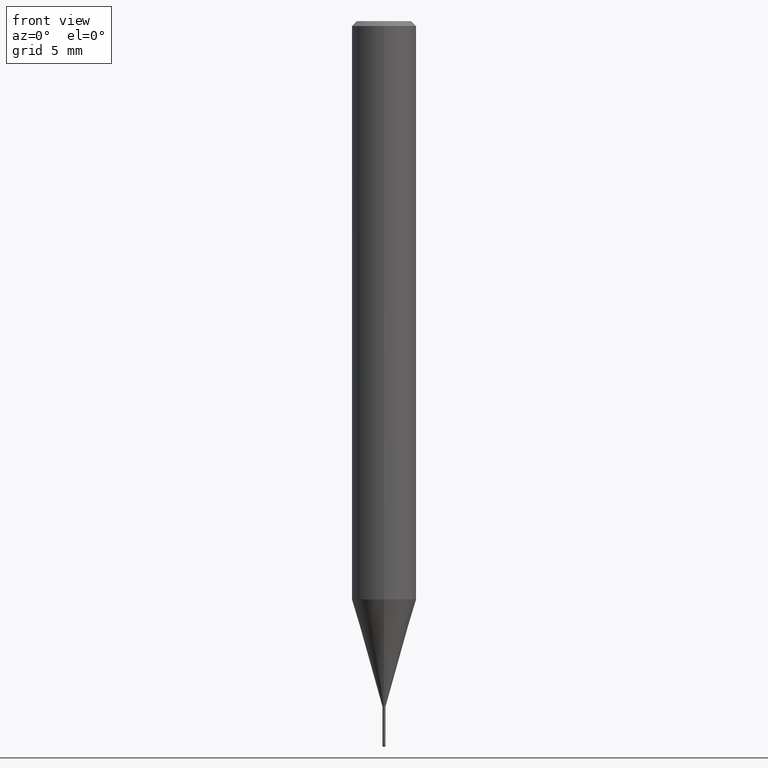
[diagram: clean part render]
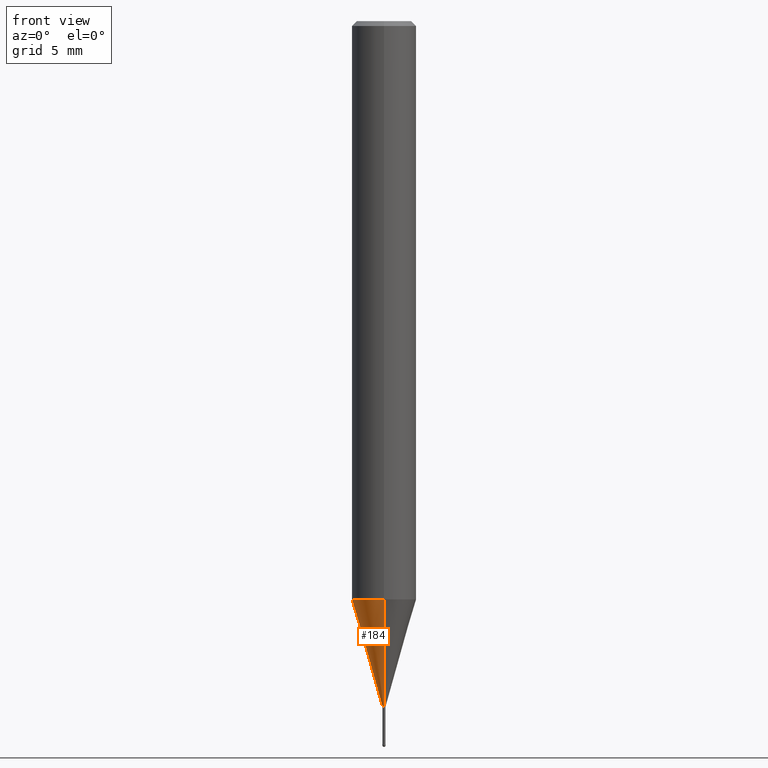
[diagram: same view with one face highlighted and labeled with its STEP entity id]
A machine part, front view. The second image highlights one B-rep face of the part: STEP entity #184.
In plain terms, the highlighted conical surface has half-angle 15.999 deg.
Its self-contained STEP definition (entity closure, byte-faithful):
#104=VERTEX_POINT('',#245);
#126=EDGE_CURVE('',#138,#180,#268,.T.);
#132=EDGE_CURVE('',#154,#180,#276,.T.);
#138=VERTEX_POINT('',#283);
#154=VERTEX_POINT('',#300);
#156=EDGE_CURVE('',#154,#104,#302,.T.);
#170=EDGE_CURVE('',#104,#138,#318,.T.);
#180=VERTEX_POINT('',#331);
#184=ADVANCED_FACE('',(#335),#336,.T.);
#245=CARTESIAN_POINT('',(2.44915147732706E-016,-1.99995,-35.856));
#268=LINE('',#428,#429);
#276=CIRCLE('',#438,0.09495);
#283=CARTESIAN_POINT('',(0.0,1.99995,-35.856));
#300=CARTESIAN_POINT('',(1.16276373295435E-017,-0.09495,-42.5));
#302=LINE('',#468,#469);
#318=CIRCLE('',#491,1.99995);
#331=CARTESIAN_POINT('',(0.0,0.09495,-42.5));
#335=FACE_OUTER_BOUND('',#509,.T.);
#336=CONICAL_SURFACE('',#510,1.04745,0.279233718115795);
#428=CARTESIAN_POINT('',(-1.28271392531125E-016,1.04745,-39.178));
#429=VECTOR('',#588,1.0);
#438=AXIS2_PLACEMENT_3D('',#605,#606,#607);
#468=CARTESIAN_POINT('',(1.28271392531125E-016,-1.04745,-39.178));
#469=VECTOR('',#625,1.0);
#491=AXIS2_PLACEMENT_3D('',#652,#653,#654);
#509=EDGE_LOOP('',(#679,#680,#681,#682));
#510=AXIS2_PLACEMENT_3D('',#683,#684,#685);
#588=DIRECTION('',(3.37524935540219E-017,-0.275619128127744,-0.961266922457078));
#605=CARTESIAN_POINT('',(0.0,0.0,-42.5));
#606=DIRECTION('',(0.0,0.0,-1.0));
#607=DIRECTION('',(0.0,1.0,0.0));
#625=DIRECTION('',(3.37524935540219E-017,-0.275619128127744,0.961266922457078));
#652=CARTESIAN_POINT('',(0.0,0.0,-35.856));
#653=DIRECTION('',(0.0,0.0,-1.0));
#654=DIRECTION('',(0.0,1.0,0.0));
#679=ORIENTED_EDGE('',*,*,#126,.T.);
#680=ORIENTED_EDGE('',*,*,#132,.F.);
#681=ORIENTED_EDGE('',*,*,#156,.T.);
#682=ORIENTED_EDGE('',*,*,#170,.T.);
#683=CARTESIAN_POINT('',(0.0,0.0,-39.178));
#684=DIRECTION('',(-0.0,-0.0,1.0));
#685=DIRECTION('',(0.0,1.0,0.0));